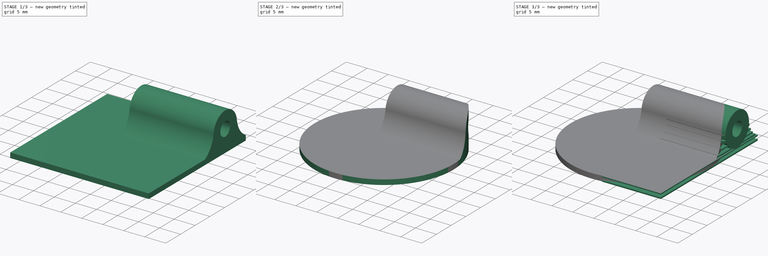
[diagram: build sequence overview — one tinted view per stage of 3, left to right]
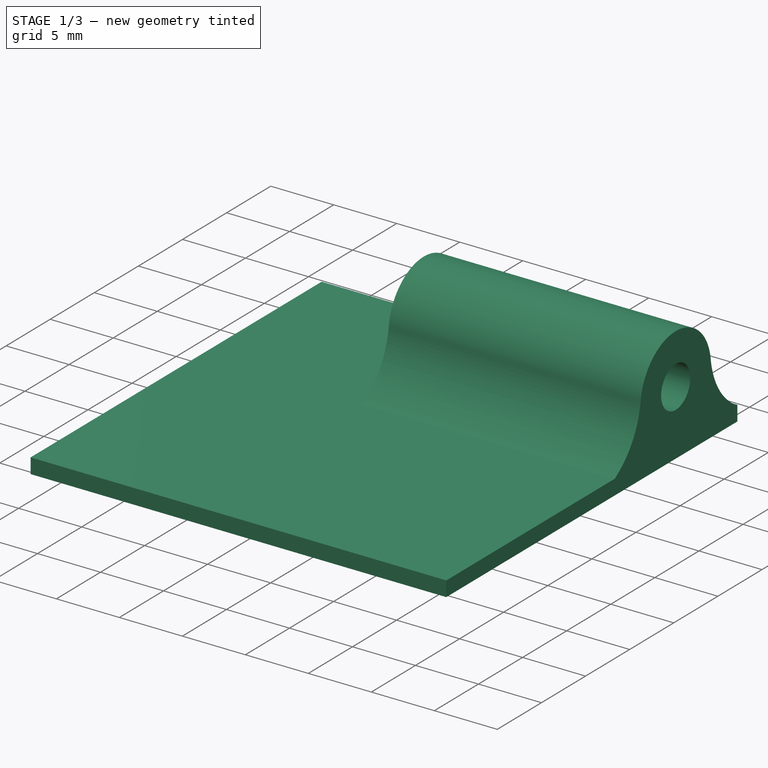
[diagram: stage 1 of 3 — iso view after this stage's code; geometry added in this stage tinted green]
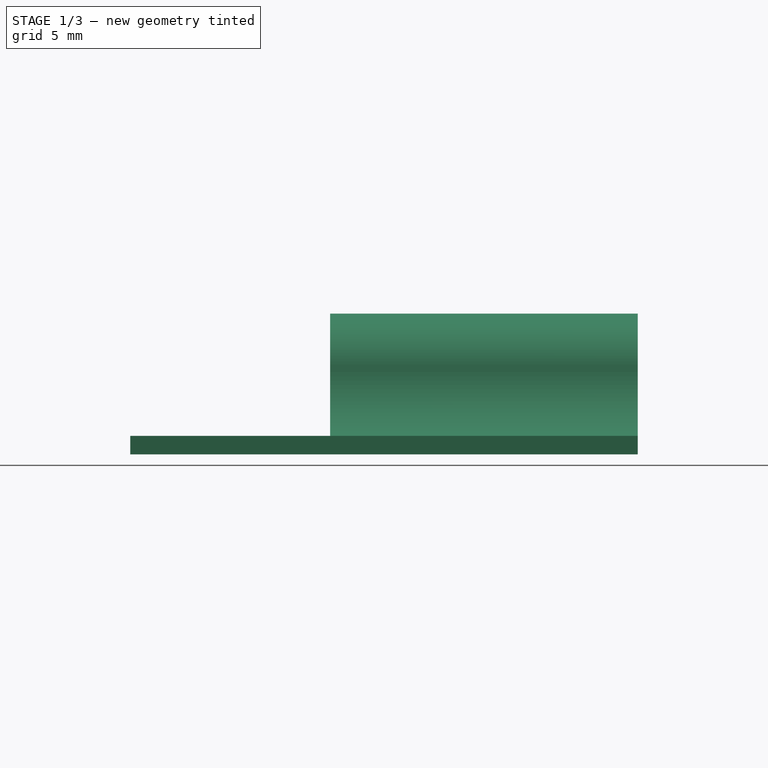
[diagram: stage 1 of 3 — front view after this stage's code; geometry added in this stage tinted green]
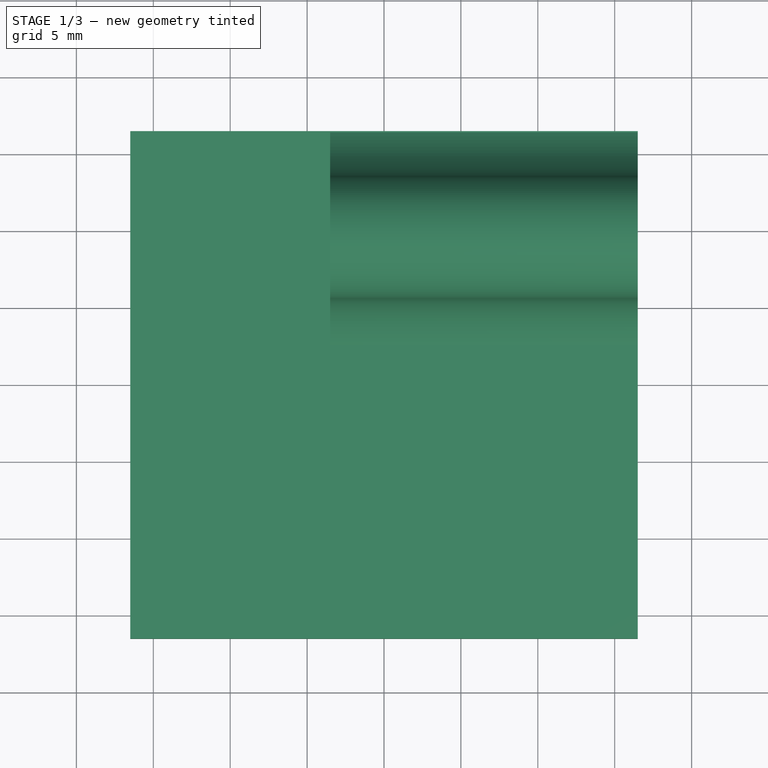
[diagram: stage 1 of 3 — top view after this stage's code; geometry added in this stage tinted green]
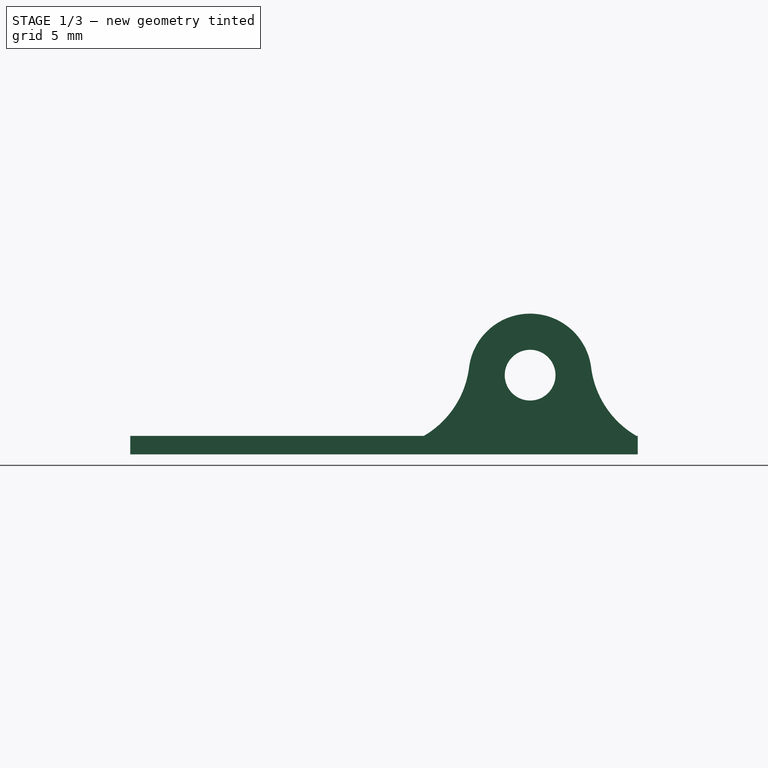
[diagram: stage 1 of 3 — right view after this stage's code; geometry added in this stage tinted green]
FCSTD DOCUMENT  (FreeCAD 0.20R29603 (Git))
Label: magnet_v2
License: All rights reserved
LicenseURL: http://en.wikipedia.org/wiki/All_rights_reserved
objects: Sketcher::SketchObject×6, PartDesign::Pad×4, PartDesign::Pocket×2, PartDesign::Body×1
note: 19 computed .brp shape members not serialized (recipe doc carries the construction recipe); baked Part::Feature solids carry a one-line shape summary decoded from their .brp

FEATURE [Sketcher::SketchObject] Sketch
  FullyConstrained = true
  MapMode = 5
  Support = -> [XY_Plane]
  sketch-geometry (4):
    g0: LineSegment StartX=-16.5 StartY=16.5 StartZ=0 EndX=16.5 EndY=16.5 EndZ=0
    g1: LineSegment StartX=16.5 StartY=16.5 StartZ=0 EndX=16.5 EndY=-16.5 EndZ=0
    g2: LineSegment StartX=16.5 StartY=-16.5 StartZ=0 EndX=-16.5 EndY=-16.5 EndZ=0
    g3: LineSegment StartX=-16.5 StartY=-16.5 StartZ=0 EndX=-16.5 EndY=16.5 EndZ=0
  constraints (10):
    c: Coincident(g0,g1)
    c: Coincident(g1,g2)
    c: Coincident(g2,g3)
    c: Coincident(g3,g0)
    c: Horizontal(g0)
    c: Vertical(g3)
    c: DistanceX(g2,g2) = 33
    c: DistanceY(g1,g1) = 33
    c: Symmetric(g2,g1,g-2)
    c: Symmetric(g0,g1,g-1)
FEATURE [PartDesign::Pad] Pad
  Direction = (0,0,1)
  Length = 1.2
  Length2 = 10
  Profile = -> Sketch
  ReferenceAxis = -> Sketch [N_Axis]
  Type = 0
FEATURE [Sketcher::SketchObject] Sketch003
  FullyConstrained = false
  MapMode = 5
  Placement = pos=(16.5,0,0) rot=(0.57735,0.57735,0.57735;2.0944rad)
  sketch-geometry (7):
    g0: Circle CenterX=9.5 CenterY=5.15 CenterZ=0 NormalX=0 NormalY=0 NormalZ=1 AngleXU=0 Radius=1.65
    g1: ArcOfCircle CenterX=9.5 CenterY=5.15 CenterZ=0 NormalX=0 NormalY=0 NormalZ=1 AngleXU=0 Radius=4 StartAngle=0.124315 EndAngle=3.01728
    g2: LineSegment StartX=2.5 StartY=1.15 StartZ=0 EndX=16.5 EndY=1.15 EndZ=0
    g3: GeomPoint X=9.5 Y=1.15 Z=0
    g4: ArcOfCircle CenterX=-0.422828 CenterY=6.38995 CenterZ=0 NormalX=0 NormalY=0 NormalZ=1 AngleXU=0 Radius=6 StartAngle=5.2212 EndAngle=6.15887
    g5: ArcOfCircle CenterX=19.4228 CenterY=6.38995 CenterZ=0 NormalX=0 NormalY=0 NormalZ=1 AngleXU=0 Radius=6 StartAngle=3.26591 EndAngle=4.20358
    g6: LineSegment StartX=5.53087 StartY=5.64598 StartZ=0 EndX=13.4691 EndY=5.64598 EndZ=0
  constraints (17):
    c: Diameter(g0) = 3.3
    c: Coincident(g1,g0)
    c: Diameter(g1) = 8
    c: Symmetric(g2,g2,g3)
    c: PointOnObject(g3,g1)
    c: Coincident(g4,g2)
    c: Coincident(g5,g2)
    c: Coincident(g6,g4)
    c: Coincident(g6,g5)
    c: Horizontal(g6)
    c: Tangent(g1,g4) = 1.5708
    c: Tangent(g1,g5) = 1.5708
    c: Equal(g4,g5)
    c: Radius(g4) = 6
    c: DistanceX(g2,g2) = 14
    c: DistanceX(g2) = 2.5
    c: DistanceY(g2) = 1.15
FEATURE [PartDesign::Pad] Pad001
  BaseFeature = -> Pad
  Direction = (1,0,0)
  Length = 20
  Length2 = 10
  Profile = -> Sketch003
  ReferenceAxis = -> Sketch003 [N_Axis]
  Reversed = true
  Type = 0
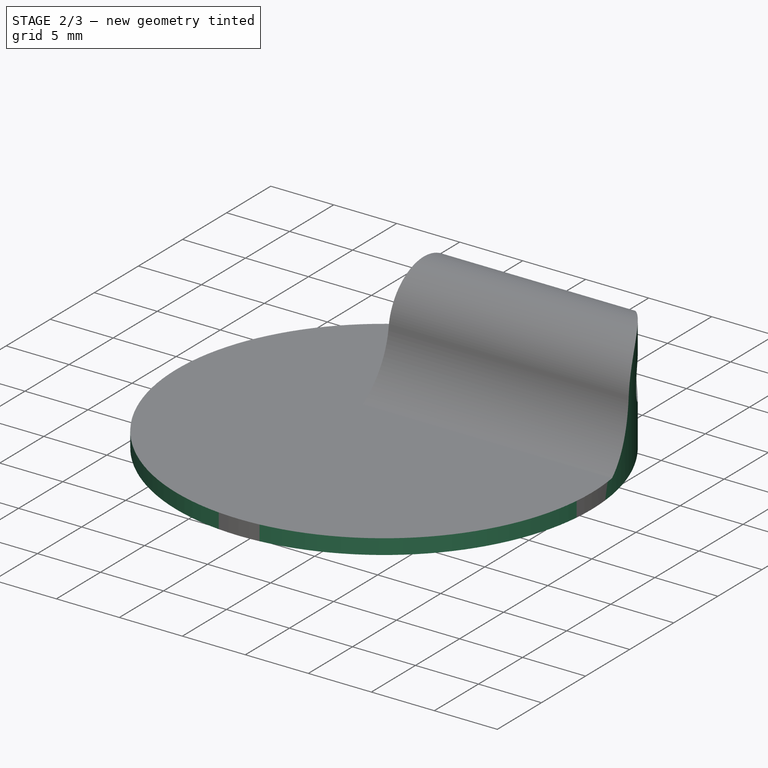
[diagram: stage 2 of 3 — iso view after this stage's code; geometry added in this stage tinted green]
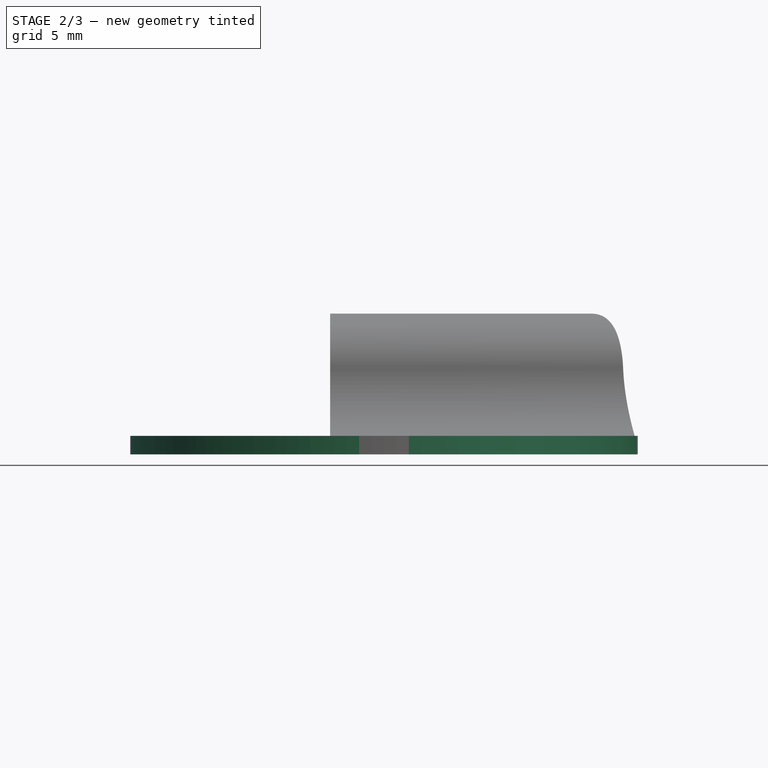
[diagram: stage 2 of 3 — front view after this stage's code; geometry added in this stage tinted green]
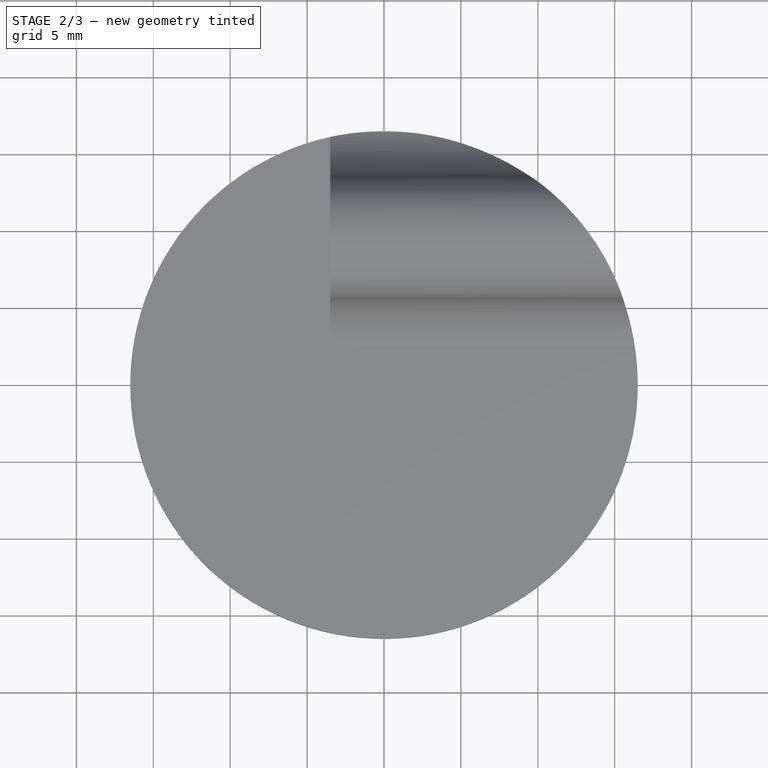
[diagram: stage 2 of 3 — top view after this stage's code; geometry added in this stage tinted green]
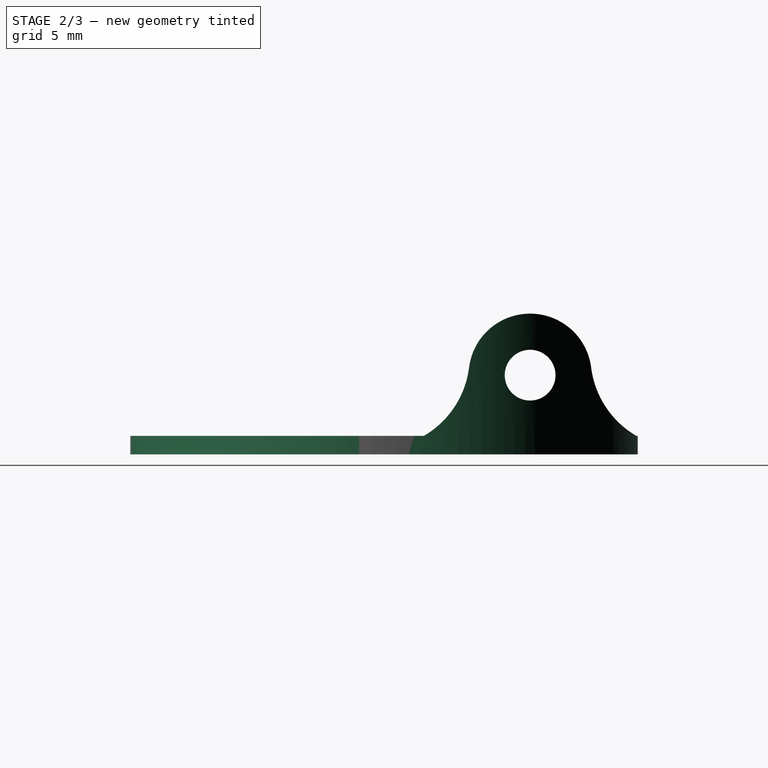
[diagram: stage 2 of 3 — right view after this stage's code; geometry added in this stage tinted green]
FEATURE [Sketcher::SketchObject] Sketch004
  ExternalGeometry = -> [Pad001]
  FullyConstrained = true
  MapMode = 5
  Placement = pos=(-3.5,0,0) rot=(0.57735,-0.57735,-0.57735;2.0944rad)
  Support = -> [Pad001]
  sketch-geometry (1):
    g0: Circle CenterX=-9.5 CenterY=5.15 CenterZ=0 NormalX=0 NormalY=0 NormalZ=1 AngleXU=0 Radius=3.15
  constraints (2):
    c: Coincident(g0,g-3)
    c: Diameter(g0) = 6.3
FEATURE [PartDesign::Pocket] Pocket
  BaseFeature = -> Pad001
  Direction = (1,0,0)
  Length = 4
  Length2 = 5
  Profile = -> Sketch004
  ReferenceAxis = -> Sketch004 [N_Axis]
  Type = 0
FEATURE [Sketcher::SketchObject] Sketch005
  FullyConstrained = true
  MapMode = 5
  Placement = pos=(0,0,0) rot=(1,0,0;3.14159rad)
  Support = -> [Pocket]
  sketch-geometry (6):
    g0: Circle CenterX=0 CenterY=0 CenterZ=0 NormalX=0 NormalY=0 NormalZ=1 AngleXU=0 Radius=16.5
    g1: Circle CenterX=0 CenterY=0 CenterZ=0 NormalX=0 NormalY=0 NormalZ=1 AngleXU=0 Radius=39.33
    g2: LineSegment StartX=-14 StartY=9.3 StartZ=0 EndX=-4 EndY=9.3 EndZ=0
    g3: LineSegment StartX=-4 StartY=9.3 StartZ=0 EndX=-4 EndY=4 EndZ=0
    g4: LineSegment StartX=-4 StartY=4 StartZ=0 EndX=-14 EndY=4 EndZ=0
    g5: LineSegment StartX=-14 StartY=4 StartZ=0 EndX=-14 EndY=9.3 EndZ=0
  constraints (17):
    c: Diameter(g0) = 33
    c: Coincident(g0,g1)
    c: Coincident(g0,g-1)
    c: Diameter(g1) = 78.66
    c: Coincident(g2,g3)
    c: Coincident(g3,g4)
    c: Coincident(g4,g5)
    c: Coincident(g5,g2)
    c: Horizontal(g2)
    c: Horizontal(g4)
    c: Vertical(g3)
    c: Vertical(g5)
    c: DistanceX(g4,g4) = 10
    c: DistanceY(g3,g3) = 5.3
    c: DistanceY(g0,g3) = 4
    c: DistanceX(g3,g0) = 4
    c: Diameter(g0) = 33
FEATURE [PartDesign::Pocket] Pocket001
  BaseFeature = -> Pocket
  Direction = (0,0,1)
  Length = 2
  Length2 = 5
  Profile = -> Sketch005
  ReferenceAxis = -> Sketch005 [N_Axis]
  Type = 1
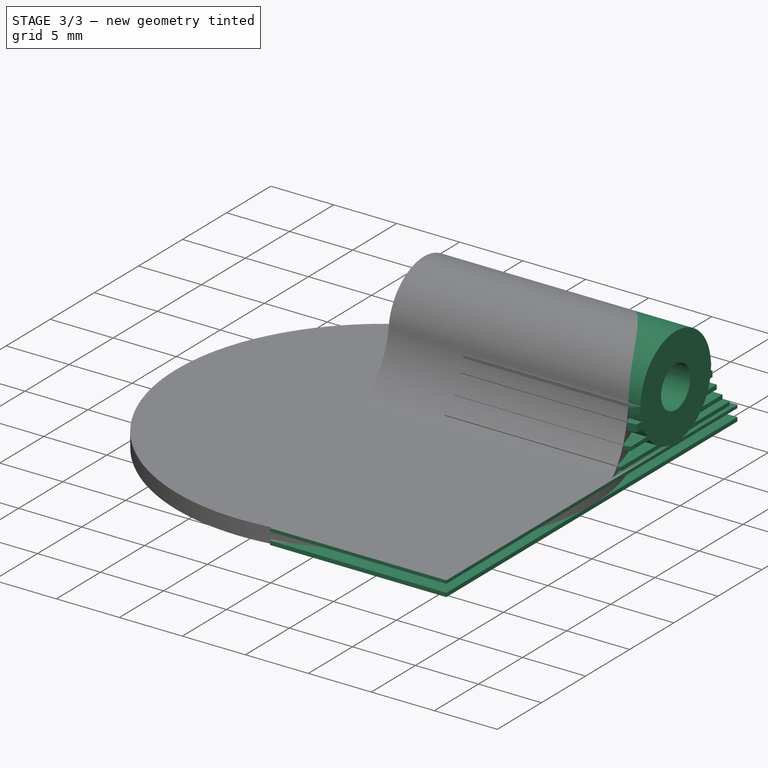
[diagram: stage 3 of 3 — iso view after this stage's code; geometry added in this stage tinted green]
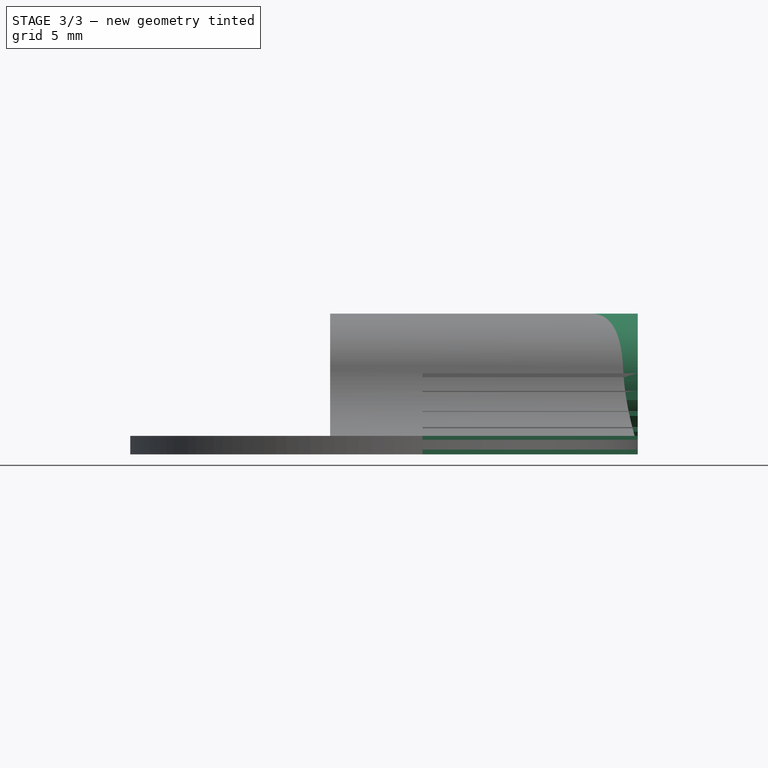
[diagram: stage 3 of 3 — front view after this stage's code; geometry added in this stage tinted green]
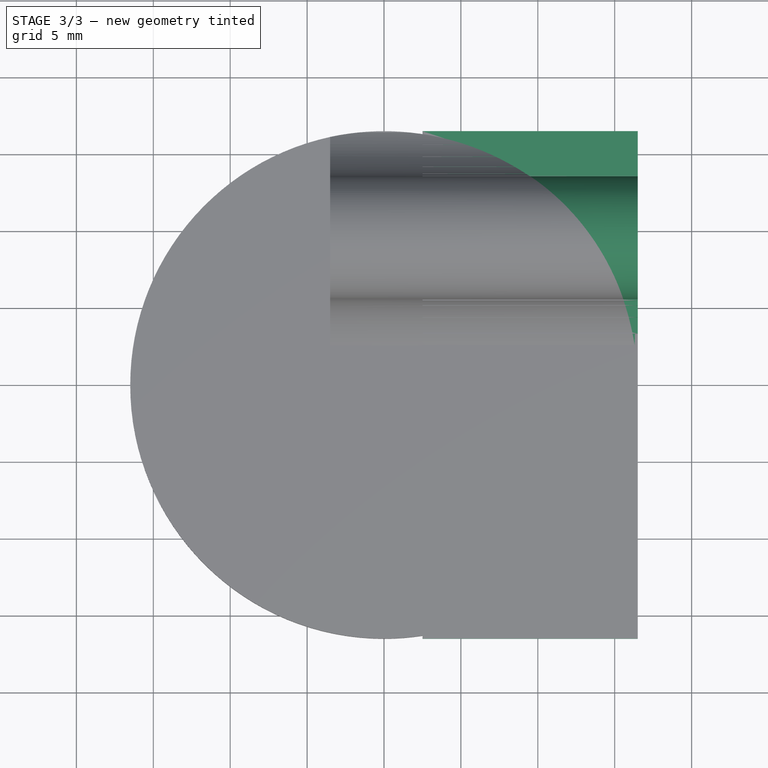
[diagram: stage 3 of 3 — top view after this stage's code; geometry added in this stage tinted green]
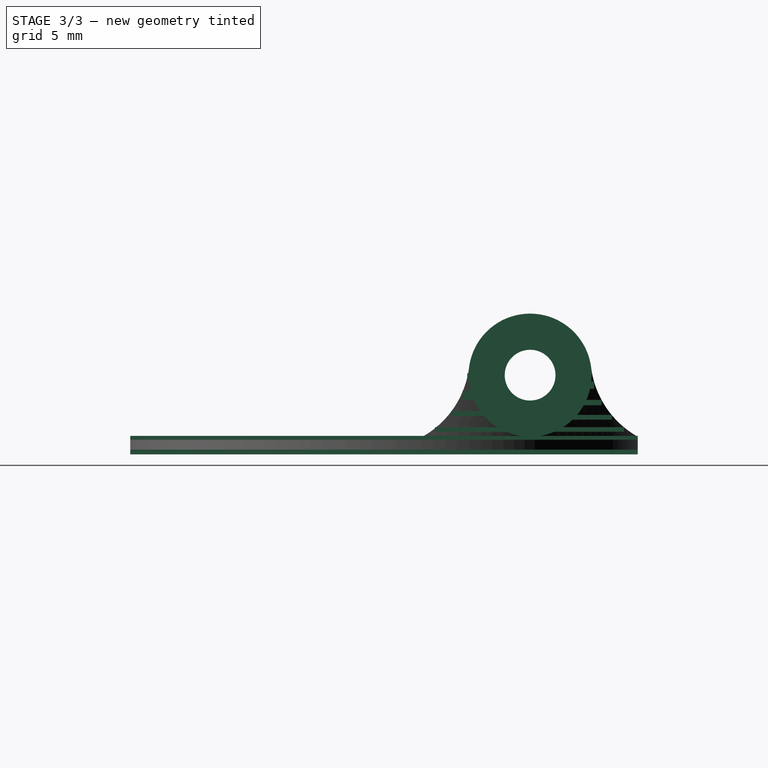
[diagram: stage 3 of 3 — right view after this stage's code; geometry added in this stage tinted green]
FEATURE [Sketcher::SketchObject] Sketch006
  FullyConstrained = true
  MapMode = 5
  Placement = pos=(0,0,0) rot=(0.57735,0.57735,0.57735;2.0944rad)
  Support = -> [YZ_Plane]
  sketch-geometry (2):
    g0: Circle CenterX=9.5 CenterY=5.15 CenterZ=0 NormalX=0 NormalY=0 NormalZ=1 AngleXU=0 Radius=1.65
    g1: Circle CenterX=9.5 CenterY=5.15 CenterZ=0 NormalX=0 NormalY=0 NormalZ=1 AngleXU=0 Radius=4
  constraints (5):
    c: Coincident(g1,g0)
    c: Diameter(g0) = 3.3
    c: DistanceX(g0) = 9.5
    c: DistanceY(g0) = 5.15
    c: Diameter(g1) = 8
FEATURE [PartDesign::Pad] Pad002
  BaseFeature = -> Pocket001
  Direction = (1,-2e-16,3e-16)
  Length = 16.5
  Length2 = 10
  Profile = -> Sketch006
  ReferenceAxis = -> Sketch006 [N_Axis]
  Type = 0
FEATURE [Sketcher::SketchObject] Sketch007
  FullyConstrained = false
  MapMode = 5
  Placement = pos=(16.5,-3.6e-15,3.6e-15) rot=(0.57735,0.57735,0.57735;2.0944rad)
  Support = -> [Pad002]
  sketch-geometry (40):
    g0: LineSegment StartX=5.41705 StartY=5.27761 StartZ=0 EndX=6.4361 EndY=5.27761 EndZ=0
    g1: LineSegment StartX=6.4361 StartY=5.27761 StartZ=0 EndX=6.4361 EndY=4.75735 EndZ=0
    g2: LineSegment StartX=6.4361 StartY=4.75735 StartZ=0 EndX=5.41705 EndY=4.75735 EndZ=0
    g3: LineSegment StartX=5.41705 StartY=4.75735 StartZ=0 EndX=5.41705 EndY=5.27761 EndZ=0
    g4: LineSegment StartX=5.10395 StartY=4.13036 StartZ=0 EndX=6.54015 EndY=4.13036 EndZ=0
    g5: LineSegment StartX=6.54015 StartY=4.13036 StartZ=0 EndX=6.54015 EndY=3.53207 EndZ=0
    g6: LineSegment StartX=6.54015 StartY=3.53207 StartZ=0 EndX=5.10395 EndY=3.53207 EndZ=0
    g7: LineSegment StartX=5.10395 StartY=3.53207 StartZ=0 EndX=5.10395 EndY=4.13036 EndZ=0
    g8: LineSegment StartX=4.36064 StartY=2.80911 StartZ=0 EndX=6.80028 EndY=2.80911 EndZ=0
    g9: LineSegment StartX=6.80028 StartY=2.80911 StartZ=0 EndX=6.80028 EndY=2.49696 EndZ=0
    g10: LineSegment StartX=6.80028 StartY=2.49696 StartZ=0 EndX=4.36064 EndY=2.49696 EndZ=0
    g11: LineSegment StartX=4.36064 StartY=2.49696 StartZ=0 EndX=4.36064 EndY=2.80911 EndZ=0
    g12: LineSegment StartX=12.1129 StartY=5.08327 StartZ=0 EndX=13.5163 EndY=5.08327 EndZ=0
    g13: LineSegment StartX=13.5163 StartY=5.08327 StartZ=0 EndX=13.5163 EndY=5.40868 EndZ=0
    g14: LineSegment StartX=13.5163 StartY=5.40868 StartZ=0 EndX=12.1129 EndY=5.40868 EndZ=0
    g15: LineSegment StartX=12.1129 StartY=5.40868 StartZ=0 EndX=12.1129 EndY=5.08327 EndZ=0
    g16: LineSegment StartX=11.9851 StartY=4.73779 StartZ=0 EndX=13.6696 EndY=4.73779 EndZ=0
    g17: LineSegment StartX=13.6696 StartY=4.73779 StartZ=0 EndX=13.6696 EndY=4.25863 EndZ=0
    g18: LineSegment StartX=13.6696 StartY=4.25863 StartZ=0 EndX=11.9851 EndY=4.25863 EndZ=0
    g19: LineSegment StartX=11.9851 StartY=4.25863 StartZ=0 EndX=11.9851 EndY=4.73779 EndZ=0
    g20: LineSegment StartX=11.9425 StartY=3.54583 StartZ=0 EndX=14.1515 EndY=3.54583 EndZ=0
    g21: LineSegment StartX=14.1515 StartY=3.54583 StartZ=0 EndX=14.1515 EndY=3.19377 EndZ=0
    g22: LineSegment StartX=14.1515 StartY=3.19377 StartZ=0 EndX=11.9425 EndY=3.19377 EndZ=0
    g23: LineSegment StartX=11.9425 StartY=3.19377 StartZ=0 EndX=11.9425 EndY=3.54583 EndZ=0
    g24: LineSegment StartX=11.3036 StartY=2.57149 StartZ=0 EndX=14.8145 EndY=2.57149 EndZ=0
    g25: LineSegment StartX=14.8145 StartY=2.57149 StartZ=0 EndX=14.8145 EndY=2.25669 EndZ=0
    g26: LineSegment StartX=14.8145 StartY=2.25669 StartZ=0 EndX=11.3036 EndY=2.25669 EndZ=0
    g27: LineSegment StartX=11.3036 StartY=2.25669 StartZ=0 EndX=11.3036 EndY=2.57149 EndZ=0
    g28: LineSegment StartX=3.31665 StartY=1.76814 StartZ=0 EndX=15.6098 EndY=1.76814 EndZ=0
    g29: LineSegment StartX=15.6098 StartY=1.76814 StartZ=0 EndX=15.6098 EndY=1.46869 EndZ=0
    g30: LineSegment StartX=15.6098 StartY=1.46869 StartZ=0 EndX=3.31665 EndY=1.46869 EndZ=0
    g31: LineSegment StartX=3.31665 StartY=1.46869 StartZ=0 EndX=3.31665 EndY=1.76814 EndZ=0
    g32: LineSegment StartX=-16.4978 StartY=0.952745 StartZ=0 EndX=16.5001 EndY=0.952745 EndZ=0
    g33: LineSegment StartX=16.5001 StartY=0.952745 StartZ=0 EndX=16.5001 EndY=1.2057 EndZ=0
    g34: LineSegment StartX=16.5001 StartY=1.2057 StartZ=0 EndX=-16.4978 EndY=1.2057 EndZ=0
    g35: LineSegment StartX=-16.4978 StartY=1.2057 StartZ=0 EndX=-16.4978 EndY=0.952745 EndZ=0
    g36: LineSegment StartX=-16.4975 StartY=0.311082 StartZ=0 EndX=16.5005 EndY=0.311082 EndZ=0
    g37: LineSegment StartX=16.5005 StartY=0.311082 StartZ=0 EndX=16.5005 EndY=0 EndZ=0
    g38: LineSegment StartX=16.5005 StartY=0 StartZ=0 EndX=-16.4975 EndY=0 EndZ=0
    g39: LineSegment StartX=-16.4975 StartY=0 StartZ=0 EndX=-16.4975 EndY=0.311082 EndZ=0
  constraints (81):
    c: Coincident(g0,g1)
    c: Coincident(g1,g2)
    c: Coincident(g2,g3)
    c: Coincident(g3,g0)
    c: Horizontal(g0)
    c: Horizontal(g2)
    c: Vertical(g1)
    c: Vertical(g3)
    c: Coincident(g4,g5)
    c: Coincident(g5,g6)
    c: Coincident(g6,g7)
    c: Coincident(g7,g4)
    c: Horizontal(g4)
    c: Horizontal(g6)
    c: Vertical(g5)
    c: Vertical(g7)
    c: Coincident(g8,g9)
    c: Coincident(g9,g10)
    c: Coincident(g10,g11)
    c: Coincident(g11,g8)
    c: Horizontal(g8)
    c: Horizontal(g10)
    c: Vertical(g9)
    c: Vertical(g11)
    c: Coincident(g12,g13)
    c: Coincident(g13,g14)
    c: Coincident(g14,g15)
    c: Coincident(g15,g12)
    c: Horizontal(g12)
    c: Horizontal(g14)
    c: Vertical(g13)
    c: Vertical(g15)
    c: Coincident(g16,g17)
    c: Coincident(g17,g18)
    c: Coincident(g18,g19)
    c: Coincident(g19,g16)
    c: Horizontal(g16)
    c: Horizontal(g18)
    c: Vertical(g17)
    c: Vertical(g19)
    c: Coincident(g20,g21)
    c: Coincident(g21,g22)
    c: Coincident(g22,g23)
    c: Coincident(g23,g20)
    c: Horizontal(g20)
    c: Horizontal(g22)
    c: Vertical(g21)
    c: Vertical(g23)
    c: Coincident(g24,g25)
    c: Coincident(g25,g26)
    c: Coincident(g26,g27)
    c: Coincident(g27,g24)
    c: Horizontal(g24)
    c: Horizontal(g26)
    c: Vertical(g25)
    c: Vertical(g27)
    c: Coincident(g28,g29)
    c: Coincident(g29,g30)
    c: Coincident(g30,g31)
    c: Coincident(g31,g28)
    c: Horizontal(g28)
    c: Horizontal(g30)
    c: Vertical(g29)
    c: Vertical(g31)
    c: Coincident(g32,g33)
    c: Coincident(g33,g34)
    c: Coincident(g34,g35)
    c: Coincident(g35,g32)
    c: Horizontal(g32)
    c: Horizontal(g34)
    c: Vertical(g33)
    c: Vertical(g35)
    c: Coincident(g36,g37)
    c: Coincident(g37,g38)
    c: Coincident(g38,g39)
    c: Coincident(g39,g36)
    c: Horizontal(g36)
    c: Horizontal(g38)
    c: Vertical(g37)
    c: Vertical(g39)
    c: PointOnObject(g37,g-1)
FEATURE [PartDesign::Pad] Pad003
  BaseFeature = -> Pad002
  Direction = (1,-2e-16,2e-16)
  Length = 14
  Length2 = 10
  Profile = -> Sketch007
  ReferenceAxis = -> Sketch007 [N_Axis]
  Reversed = true
  Type = 0
FEATURE [PartDesign::Body] Body
  Group = -> [Sketch,Pad,Sketch003,Pad001,Sketch004,Pocket,Sketch005,Pocket001,Sketch006,Pad002,Sketch007,Pad003]
  Origin = -> Origin
  Tip = -> Pad003
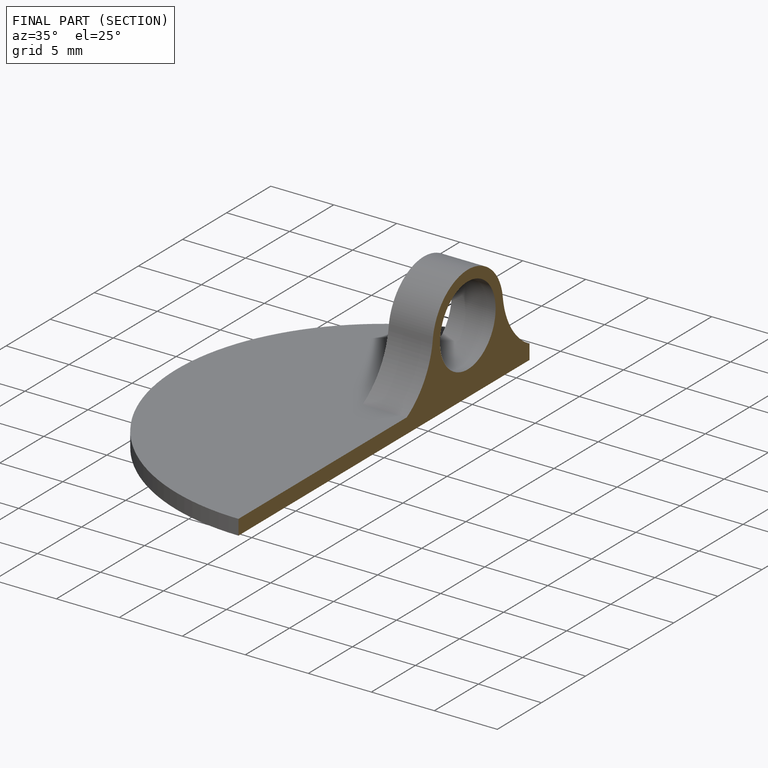
[diagram: finished part — half-section view (interior)]
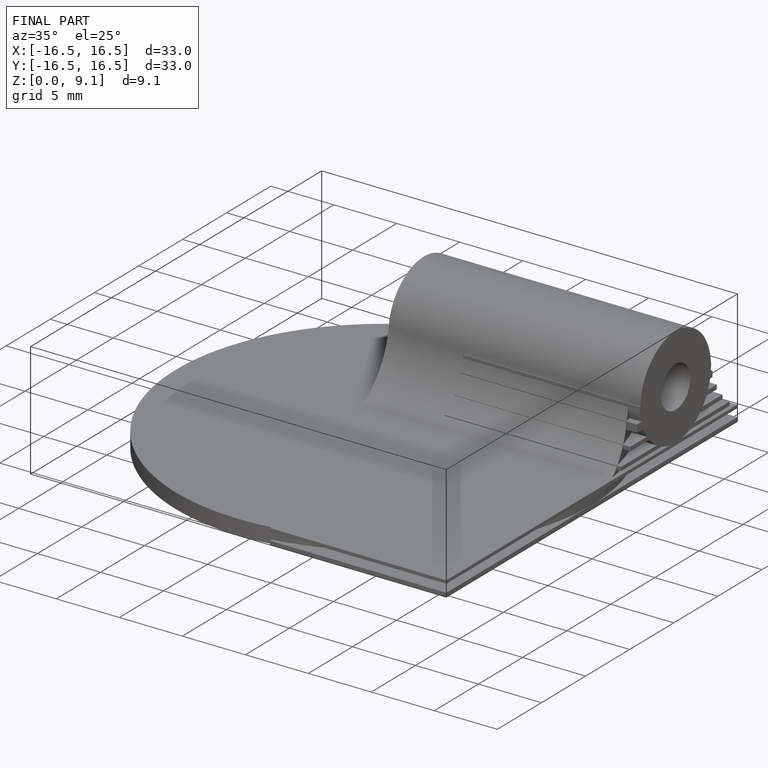
[diagram: finished part — iso view with bounding-box wireframe]
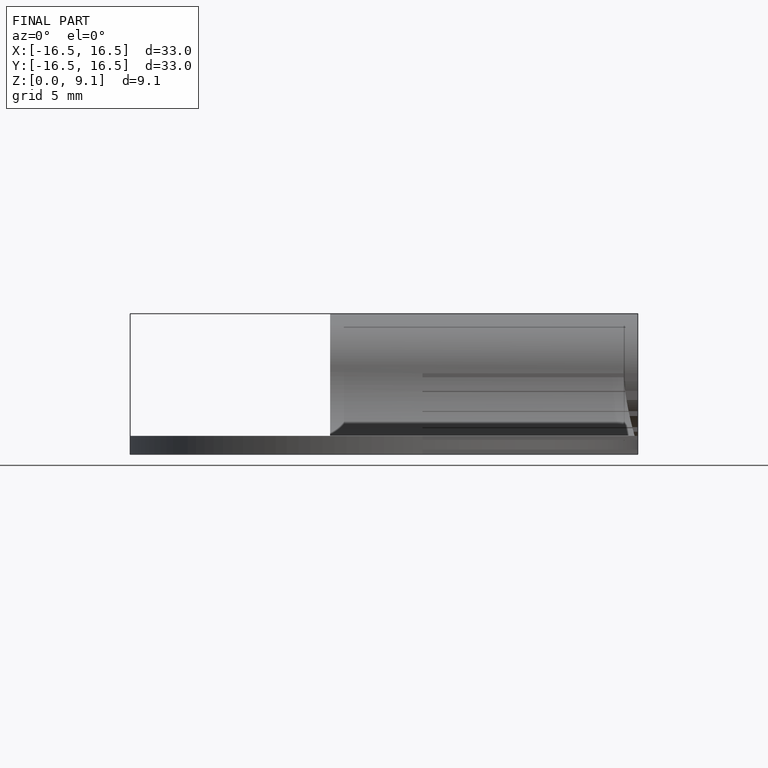
[diagram: finished part — front view with bounding-box wireframe]
